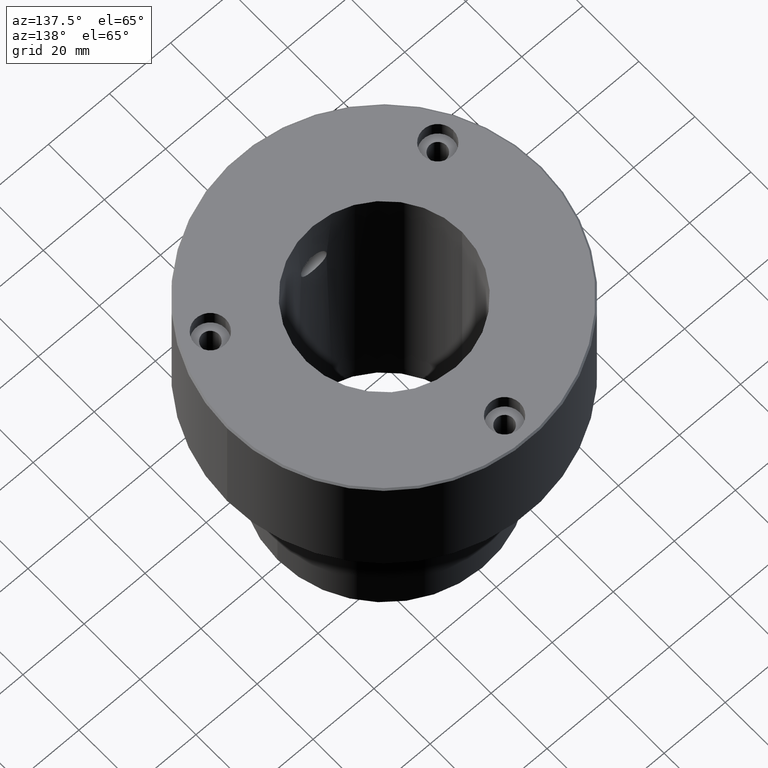
[diagram: clean part render]
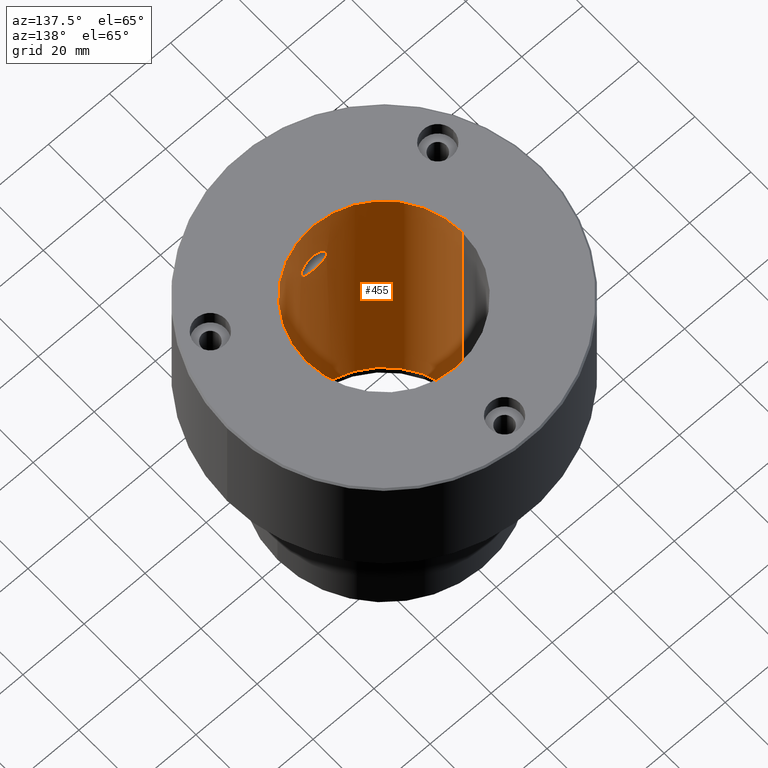
[diagram: same view with one face highlighted and labeled with its STEP entity id]
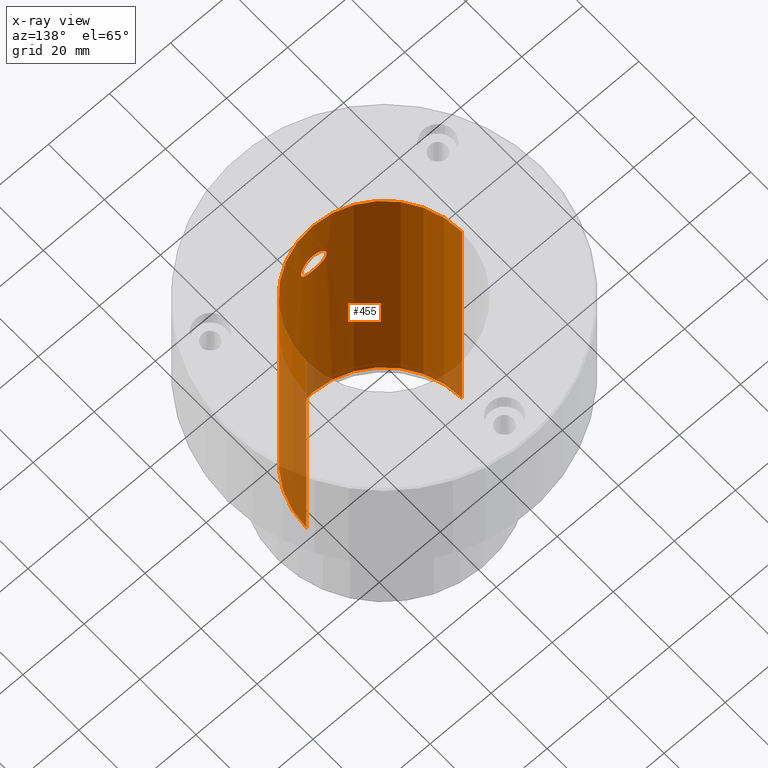
[diagram: x-ray of the same camera — body ghosted, the highlighted face saturated]
A machine part, auxiliary view. The second image highlights one B-rep face of the part: STEP entity #455.
The next image is the same camera in x-ray: the body ghosted, the highlighted face saturated — about 14% of this face is hidden behind the body in this view.
In plain terms, the highlighted cylindrical surface (partial cylindrical patch) has radius 25.5 mm, axis along (-0, -0, -1).
Its self-contained STEP definition (entity closure, byte-faithful):
#6 = CARTESIAN_POINT ( 'NONE',  ( 2.116419163258565384, -25.41305288348297253, -17.59293339314139004 ) ) ;
#10 = EDGE_CURVE ( 'NONE', #1096, #1173, #1106, .T. ) ;
#19 = VECTOR ( 'NONE', #207, 1000.000000000000000 ) ;
#22 = VECTOR ( 'NONE', #1223, 1000.000000000000000 ) ;
#27 = CARTESIAN_POINT ( 'NONE',  ( 2.113553375967275105, -25.41329928609551914, -24.90879462704440428 ) ) ;
#51 = B_SPLINE_CURVE_WITH_KNOTS ( 'NONE', 3,
 ( #200, #387, #505, #988, #1084, #591, #27, #879, #887, #767, #301, #977, #215, #111, #686, #493, #400, #405, #479, #413, #776, #100, #487, #1078, #286, #1178, #791, #6, #276, #679, #91, #1247, #1159, #671 ),
 .UNSPECIFIED., .F., .F.,
 ( 4, 2, 2, 2, 2, 2, 2, 2, 2, 2, 2, 2, 2, 2, 2, 2, 4 ),
 ( 0.000000000000000000, 0.0008253172047675951320, 0.001650634409535190264, 0.002475951614302785396, 0.003301268819070380528, 0.004126586023837975660, 0.004951903228605570792, 0.005777220433373165924, 0.006602537638140761056, 0.007427854842908356188, 0.008253172047675951320, 0.009078489252443547319, 0.009903806457211141584, 0.01072912366197873585, 0.01155444086674633185, 0.01237975807151392785, 0.01320507527628152211 ),
 .UNSPECIFIED. ) ;
#56 = DIRECTION ( 'NONE',  ( -1.000000000000000000, 0.000000000000000000, 0.000000000000000000 ) ) ;
#74 = EDGE_CURVE ( 'NONE', #1121, #927, #299, .T. ) ;
#77 = DIRECTION ( 'NONE',  ( 0.000000000000000000, 0.000000000000000000, -1.000000000000000000 ) ) ;
#80 = CARTESIAN_POINT ( 'NONE',  ( -1.872818547894966823, -25.43240183385599451, -25.03760462252570562 ) ) ;
#91 = CARTESIAN_POINT ( 'NONE',  ( 1.096625499131874459, -25.47784856406106968, -17.16935748008194551 ) ) ;
#100 = CARTESIAN_POINT ( 'NONE',  ( 3.789544513599316211, -25.21707409734397132, -19.38080494757549488 ) ) ;
#111 = CARTESIAN_POINT ( 'NONE',  ( 3.999840217767358208, -25.18457084077915908, -22.61186983990307198 ) ) ;
#151 = FACE_OUTER_BOUND ( 'NONE', #937, .T. ) ;
#173 = CARTESIAN_POINT ( 'NONE',  ( -4.189400104009188830, -25.15356570405769432, -21.80014484968143407 ) ) ;
#189 = CARTESIAN_POINT ( 'NONE',  ( -2.113424443738458613, -25.41331802866312373, -17.59104806631358997 ) ) ;
#200 = CARTESIAN_POINT ( 'NONE',  ( 0.000000000000000000, -25.50000000000000000, -25.46640000000000725 ) ) ;
#205 = CARTESIAN_POINT ( 'NONE',  ( -4.082376795831723193, -25.17115691732650617, -22.33992306332049438 ) ) ;
#207 = DIRECTION ( 'NONE',  ( -0.000000000000000000, -0.000000000000000000, -1.000000000000000000 ) ) ;
#215 = CARTESIAN_POINT ( 'NONE',  ( 3.789451013508863930, -25.21708530377985369, -23.11908326318640405 ) ) ;
#221 = AXIS2_PLACEMENT_3D ( 'NONE', #713, #1105, #56 ) ;
#264 = CARTESIAN_POINT ( 'NONE',  ( -3.177300207397922183, -25.30203282816428967, -24.03532832481777248 ) ) ;
#269 = CARTESIAN_POINT ( 'NONE',  ( -3.787293094681560390, -25.21741371072081250, -19.37624097022190384 ) ) ;
#276 = CARTESIAN_POINT ( 'NONE',  ( 1.869611449621641164, -25.43265362280505926, -17.46069723322010603 ) ) ;
#286 = CARTESIAN_POINT ( 'NONE',  ( 3.177798666438818920, -25.30198953381166049, -18.46491203586648311 ) ) ;
#296 = ORIENTED_EDGE ( 'NONE', *, *, #74, .F. ) ;
#299 = LINE ( 'NONE', #1065, #19 ) ;
#301 = CARTESIAN_POINT ( 'NONE',  ( 3.350563796940972505, -25.27939735091340623, -23.82460463236934345 ) ) ;
#353 = DIRECTION ( 'NONE',  ( -1.000000000000000000, 0.000000000000000000, 0.000000000000000000 ) ) ;
#371 = CARTESIAN_POINT ( 'NONE',  ( -1.360112992080216410, -25.46497084381185161, -17.24955471576778976 ) ) ;
#381 = CARTESIAN_POINT ( 'NONE',  ( -4.216569245939910893, -25.14896705282180633, -21.52599836395986799 ) ) ;
#387 = CARTESIAN_POINT ( 'NONE',  ( 0.2791032458489891011, -25.49999999999999645, -25.46640000000000725 ) ) ;
#400 = CARTESIAN_POINT ( 'NONE',  ( 4.216295184423759501, -25.14901300109081461, -21.52713612263102050 ) ) ;
#405 = CARTESIAN_POINT ( 'NONE',  ( 4.216504208955884181, -25.14897795671003422, -20.97606247332785046 ) ) ;
#407 = ORIENTED_EDGE ( 'NONE', *, *, #864, .T. ) ;
#413 = CARTESIAN_POINT ( 'NONE',  ( 4.081060513129728839, -25.17137132063669824, -20.15496731601088243 ) ) ;
#414 = ORIENTED_EDGE ( 'NONE', *, *, #10, .T. ) ;
#455 = ADVANCED_FACE ( 'NONE', ( #1019, #151 ), #920, .F. ) ;
#461 = CARTESIAN_POINT ( 'NONE',  ( -4.001119552626871467, -25.18436931731844197, -22.60838941840230376 ) ) ;
#467 = CARTESIAN_POINT ( 'NONE',  ( -1.365858219145525076, -25.46466068254697745, -25.24847838747568574 ) ) ;
#476 = CARTESIAN_POINT ( 'NONE',  ( -25.50000000000000000, 0.000000000000000000, 0.000000000000000000 ) ) ;
#479 = CARTESIAN_POINT ( 'NONE',  ( 4.188958161258274693, -25.15364026530606267, -20.69612184186518533 ) ) ;
#481 = CARTESIAN_POINT ( 'NONE',  ( -3.174007929228348068, -25.30245049759470177, -18.46087533757664545 ) ) ;
#487 = CARTESIAN_POINT ( 'NONE',  ( 3.657670792388203473, -25.23678185616040892, -19.13463080867607147 ) ) ;
#493 = CARTESIAN_POINT ( 'NONE',  ( 4.189443301486568849, -25.15356004457745343, -21.80105820717854925 ) ) ;
#505 = CARTESIAN_POINT ( 'NONE',  ( 0.5534471586955803657, -25.49542234989137768, -25.43896151816977635 ) ) ;
#526 = AXIS2_PLACEMENT_3D ( 'NONE', #928, #949, #1245 ) ;
#562 = CARTESIAN_POINT ( 'NONE',  ( -4.216229183245225443, -25.14902406663277645, -20.96885452686182916 ) ) ;
#591 = CARTESIAN_POINT ( 'NONE',  ( 1.871541207951981090, -25.43251327011070018, -25.03836613992906024 ) ) ;
#603 = VERTEX_POINT ( 'NONE', #1087 ) ;
#649 = CARTESIAN_POINT ( 'NONE',  ( -4.188548331037955208, -25.15370828891422761, -20.69354294013977480 ) ) ;
#656 = CARTESIAN_POINT ( 'NONE',  ( -2.577702780191892362, -25.37043761755232296, -24.59821826823668189 ) ) ;
#664 = ORIENTED_EDGE ( 'NONE', *, *, #772, .F. ) ;
#666 = CARTESIAN_POINT ( 'NONE',  ( -3.660640428422397452, -25.23635400937047280, -23.36038752228353133 ) ) ;
#671 = CARTESIAN_POINT ( 'NONE',  ( 5.163598955028708148E-16, -25.50000000000000000, -17.03359999999999630 ) ) ;
#673 = CARTESIAN_POINT ( 'NONE',  ( -2.785141719531619042, -25.34820137840472043, -18.07249652722973465 ) ) ;
#679 = CARTESIAN_POINT ( 'NONE',  ( 1.359492166693419213, -25.46501714742863598, -17.24924463637411520 ) ) ;
#683 = CARTESIAN_POINT ( 'NONE',  ( -3.657586496150341482, -25.23679588863743106, -19.13442485311258423 ) ) ;
#686 = CARTESIAN_POINT ( 'NONE',  ( 4.081023316364557729, -25.17137792779376326, -22.34560440641609347 ) ) ;
#713 = CARTESIAN_POINT ( 'NONE',  ( 0.000000000000000000, 0.000000000000000000, 0.000000000000000000 ) ) ;
#745 = CARTESIAN_POINT ( 'NONE',  ( -0.5493821869539694536, -25.49554056821209258, -17.06031297062902041 ) ) ;
#758 = EDGE_CURVE ( 'NONE', #603, #812, #833, .T. ) ;
#767 = CARTESIAN_POINT ( 'NONE',  ( 3.176207609451170644, -25.30217181389181036, -24.03659470710771018 ) ) ;
#772 = EDGE_CURVE ( 'NONE', #603, #1121, #991, .T. ) ;
#776 = CARTESIAN_POINT ( 'NONE',  ( 4.001260395445831008, -25.18434809359423809, -19.89189359312476668 ) ) ;
#791 = CARTESIAN_POINT ( 'NONE',  ( 2.572678884313231329, -25.37092450604667349, -17.89818115050689684 ) ) ;
#812 = VERTEX_POINT ( 'NONE', #1054 ) ;
#833 = LINE ( 'NONE', #940, #22 ) ;
#837 = CARTESIAN_POINT ( 'NONE',  ( 0.000000000000000000, 0.000000000000000000, 0.000000000000000000 ) ) ;
#840 = CARTESIAN_POINT ( 'NONE',  ( -3.789940242434755024, -25.21701347392820836, -23.11829666948640849 ) ) ;
#846 = CARTESIAN_POINT ( 'NONE',  ( -1.099270779257816688, -25.47775163465341208, -25.33004235552737171 ) ) ;
#854 = CARTESIAN_POINT ( 'NONE',  ( -0.5546735354725089717, -25.49542237093280406, -25.43897113120558373 ) ) ;
#862 = CARTESIAN_POINT ( 'NONE',  ( -1.094661302543184389, -25.47795373034117006, -17.16869937101710164 ) ) ;
#864 = EDGE_CURVE ( 'NONE', #1173, #1096, #51, .T. ) ;
#879 = CARTESIAN_POINT ( 'NONE',  ( 2.571558367454235494, -25.37104601786260716, -24.60275611381558392 ) ) ;
#880 = EDGE_LOOP ( 'NONE', ( #407, #414 ) ) ;
#887 = CARTESIAN_POINT ( 'NONE',  ( 2.788027575719228324, -25.34788147982126816, -24.42494993299821715 ) ) ;
#919 = EDGE_CURVE ( 'NONE', #812, #927, #1211, .T. ) ;
#920 = CYLINDRICAL_SURFACE ( 'NONE', #221, 25.50000000000000000 ) ;
#927 = VERTEX_POINT ( 'NONE', #1234 ) ;
#928 = CARTESIAN_POINT ( 'NONE',  ( 0.000000000000000000, 0.000000000000000000, -95.00000000000000000 ) ) ;
#937 = EDGE_LOOP ( 'NONE', ( #664, #1008, #1006, #296 ) ) ;
#940 = CARTESIAN_POINT ( 'NONE',  ( 25.50000000000000000, 3.122849337825750222E-15, 0.000000000000000000 ) ) ;
#943 = CARTESIAN_POINT ( 'NONE',  ( -3.351933048434502904, -25.27920787011295900, -18.67742502193587839 ) ) ;
#949 = DIRECTION ( 'NONE',  ( 0.000000000000000000, 0.000000000000000000, -1.000000000000000000 ) ) ;
#954 = CARTESIAN_POINT ( 'NONE',  ( 5.163598955028708148E-16, -25.50000000000000000, -17.03359999999999630 ) ) ;
#970 = CARTESIAN_POINT ( 'NONE',  ( -0.2753627516284092858, -25.50000000000000355, -17.03359999999999630 ) ) ;
#977 = CARTESIAN_POINT ( 'NONE',  ( 3.658790384563155307, -25.23662935307659438, -23.36379272688156661 ) ) ;
#988 = CARTESIAN_POINT ( 'NONE',  ( 1.093034458247597707, -25.47799325358833045, -25.33154113433378285 ) ) ;
#991 = CIRCLE ( 'NONE', #1092, 25.50000000000000000 ) ;
#1006 = ORIENTED_EDGE ( 'NONE', *, *, #919, .T. ) ;
#1008 = ORIENTED_EDGE ( 'NONE', *, *, #758, .T. ) ;
#1019 = FACE_BOUND ( 'NONE', #880, .T. ) ;
#1038 = CARTESIAN_POINT ( 'NONE',  ( 0.000000000000000000, -25.50000000000000000, -25.46640000000000725 ) ) ;
#1041 = CARTESIAN_POINT ( 'NONE',  ( -2.789587484337786361, -25.34770805245831937, -24.42356143034746196 ) ) ;
#1048 = CARTESIAN_POINT ( 'NONE',  ( 0.000000000000000000, -25.50000000000000000, -25.46640000000000725 ) ) ;
#1054 = CARTESIAN_POINT ( 'NONE',  ( 25.50000000000000000, 3.122849337825750222E-15, -95.00000000000000000 ) ) ;
#1056 = CARTESIAN_POINT ( 'NONE',  ( -4.080854030105978580, -25.17140457324940428, -20.15445814051817663 ) ) ;
#1064 = CARTESIAN_POINT ( 'NONE',  ( -2.116391715035989218, -25.41307818107932803, -24.90732187581156865 ) ) ;
#1065 = CARTESIAN_POINT ( 'NONE',  ( -25.50000000000000000, 0.000000000000000000, 0.000000000000000000 ) ) ;
#1071 = CARTESIAN_POINT ( 'NONE',  ( -3.999652579283655029, -25.18460487058914055, -19.88715696731898674 ) ) ;
#1078 = CARTESIAN_POINT ( 'NONE',  ( 3.352606728832786764, -25.27911672117327768, -18.67835255859647248 ) ) ;
#1084 = CARTESIAN_POINT ( 'NONE',  ( 1.361110099766329462, -25.46493229961025406, -25.25022046886636673 ) ) ;
#1087 = CARTESIAN_POINT ( 'NONE',  ( 25.50000000000000000, 3.122849337825750222E-15, 0.000000000000000000 ) ) ;
#1092 = AXIS2_PLACEMENT_3D ( 'NONE', #837, #77, #353 ) ;
#1096 = VERTEX_POINT ( 'NONE', #1233 ) ;
#1105 = DIRECTION ( 'NONE',  ( -0.000000000000000000, -0.000000000000000000, -1.000000000000000000 ) ) ;
#1106 = B_SPLINE_CURVE_WITH_KNOTS ( 'NONE', 3,
 ( #954, #970, #745, #862, #371, #1136, #189, #1142, #673, #481, #943, #683, #269, #1071, #1056, #649, #562, #381, #173, #205, #461, #840, #666, #1231, #264, #1041, #656, #1064, #80, #467, #846, #854, #1236, #1048 ),
 .UNSPECIFIED., .F., .F.,
 ( 4, 2, 2, 2, 2, 2, 2, 2, 2, 2, 2, 2, 2, 2, 2, 2, 4 ),
 ( 0.01320507527628152211, 0.01403018687190946308, 0.01485529846753740404, 0.01568041006316534675, 0.01650552165879328598, 0.01733063325442122521, 0.01815574485004916791, 0.01898085644567710714, 0.01980596804130504984, 0.02063107963693298907, 0.02145619123256092831, 0.02228130282818887101, 0.02310641442381681024, 0.02393152601944475294, 0.02475663761507269217, 0.02558174921070063487, 0.02640686080632857410 ),
 .UNSPECIFIED. ) ;
#1121 = VERTEX_POINT ( 'NONE', #476 ) ;
#1136 = CARTESIAN_POINT ( 'NONE',  ( -1.867610715253976705, -25.43278745327931745, -17.45981530270229243 ) ) ;
#1142 = CARTESIAN_POINT ( 'NONE',  ( -2.573189784463035146, -25.37088864108824637, -17.89840538466332376 ) ) ;
#1159 = CARTESIAN_POINT ( 'NONE',  ( 0.2754313691327018865, -25.50000000000000355, -17.03359999999999630 ) ) ;
#1173 = VERTEX_POINT ( 'NONE', #1038 ) ;
#1178 = CARTESIAN_POINT ( 'NONE',  ( 2.785143540015348140, -25.34821599629934141, -18.07225004226379639 ) ) ;
#1211 = CIRCLE ( 'NONE', #526, 25.50000000000000000 ) ;
#1223 = DIRECTION ( 'NONE',  ( -0.000000000000000000, -0.000000000000000000, -1.000000000000000000 ) ) ;
#1231 = CARTESIAN_POINT ( 'NONE',  ( -3.354694581675446763, -25.27884246353355380, -23.81905587796138235 ) ) ;
#1233 = CARTESIAN_POINT ( 'NONE',  ( 5.163598955028708148E-16, -25.50000000000000000, -17.03359999999999630 ) ) ;
#1234 = CARTESIAN_POINT ( 'NONE',  ( -25.50000000000000000, 0.000000000000000000, -95.00000000000000000 ) ) ;
#1236 = CARTESIAN_POINT ( 'NONE',  ( -0.2790337135795504797, -25.49999999999999289, -25.46640000000000015 ) ) ;
#1245 = DIRECTION ( 'NONE',  ( -1.000000000000000000, 0.000000000000000000, 0.000000000000000000 ) ) ;
#1247 = CARTESIAN_POINT ( 'NONE',  ( 0.5552273665860211205, -25.49539326054746624, -17.06121098262239144 ) ) ;